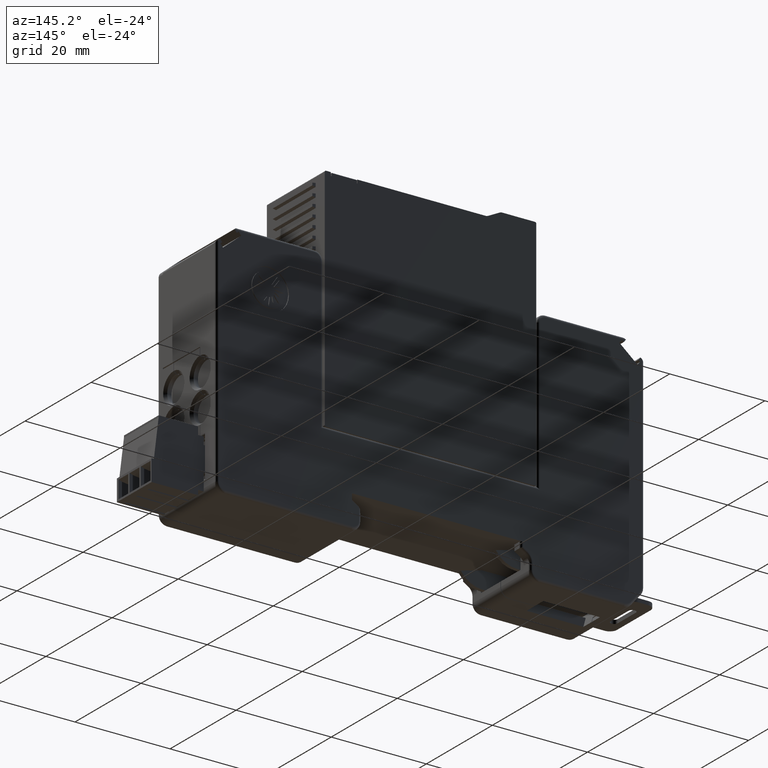
[diagram: clean part render]
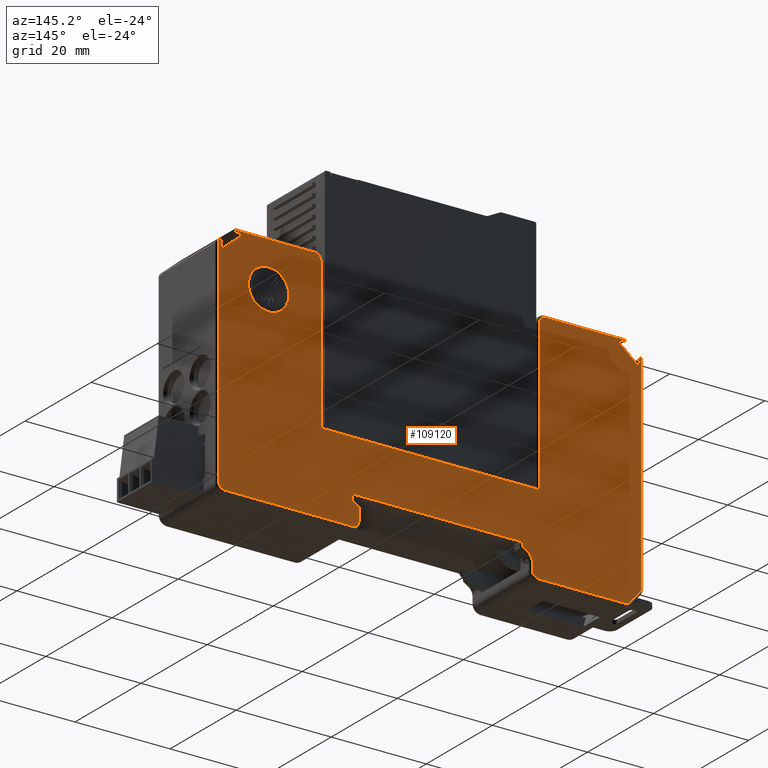
[diagram: same view with one face highlighted and labeled with its STEP entity id]
A machine part, auxiliary view. The second image highlights one B-rep face of the part: STEP entity #109120.
In plain terms, the highlighted planar face has unit normal (0, 1, 0).
Its self-contained STEP definition (entity closure, byte-faithful):
#8330=CARTESIAN_POINT('',(-211.662254520414,945.611242401068,
57.3942001002872));
#8340=VERTEX_POINT('',#8330);
#8510=CARTESIAN_POINT('',(-215.492131061991,945.611242401068,
54.1798501261889));
#8520=VERTEX_POINT('',#8510);
#8550=CARTESIAN_POINT('',(-212.745219310265,945.611242401068,
56.4852862472121));
#8560=DIRECTION('',(-0.765975307094292,8.32667268468867E-17,
-0.642869993794861));
#8570=VECTOR('',#8560,1.);
#8580=LINE('',#8550,#8570);
#8590=EDGE_CURVE('',#8340,#8520,#8580,.T.);
#31280=CARTESIAN_POINT('',(-212.208619309318,945.611242401068,
58.0452647496181));
#31290=VERTEX_POINT('',#31280);
#31410=CARTESIAN_POINT('',(-166.626557585868,945.611242401068,
3.7283145462322));
#31420=DIRECTION('',(0.642826743603436,-8.32667268468867E-17,
-0.766011604160278));
#31430=VECTOR('',#31420,1.);
#31440=LINE('',#31410,#31430);
#31450=EDGE_CURVE('',#31290,#8340,#31440,.T.);
#36120=CARTESIAN_POINT('',(-156.907462,945.611242401068,9.71286900000145
));
#36130=VERTEX_POINT('',#36120);
#36300=CARTESIAN_POINT('',(-155.607462,945.611242401068,8.41286900000146
));
#36310=VERTEX_POINT('',#36300);
#36340=CARTESIAN_POINT('',(-155.607462,945.611242401068,9.71286900000145
));
#36350=DIRECTION('',(0.,-1.,0.));
#36360=DIRECTION('',(1.,0.,0.));
#36370=AXIS2_PLACEMENT_3D('',#36340,#36350,#36360);
#36380=CIRCLE('',#36370,1.3);
#36390=EDGE_CURVE('',#36130,#36310,#36380,.T.);
#38900=CARTESIAN_POINT('',(-193.407462,945.611242401068,11.1142576932756
));
#38910=VERTEX_POINT('',#38900);
#39100=CARTESIAN_POINT('',(-192.326276307736,945.611242401068,
13.0647683144352));
#39110=VERTEX_POINT('',#39100);
#39140=CARTESIAN_POINT('',(-191.107462,945.611242401068,11.1142576932756
));
#39150=DIRECTION('',(0.,-1.,0.));
#39160=DIRECTION('',(1.,0.,0.));
#39170=AXIS2_PLACEMENT_3D('',#39140,#39150,#39160);
#39180=CIRCLE('',#39170,2.29999999999945);
#39190=EDGE_CURVE('',#39110,#38910,#39180,.T.);
#41000=CARTESIAN_POINT('',(-216.407462000001,945.611242401068,
55.5005332416126));
#41010=VERTEX_POINT('',#41000);
#41280=CARTESIAN_POINT('',(-216.407462,945.611242401068,12.3539654717783
));
#41290=VERTEX_POINT('',#41280);
#41320=CARTESIAN_POINT('',(-216.407462,945.611242401068,3.7283145462322)
);
#41330=DIRECTION('',(1.66837011230926E-14,-3.15544362088405E-30,-1.));
#41340=VECTOR('',#41330,1.);
#41350=LINE('',#41320,#41340);
#41360=EDGE_CURVE('',#41010,#41290,#41350,.T.);
#42080=CARTESIAN_POINT('',(-212.591625111398,945.611242401068,
57.7238513778171));
#42090=VERTEX_POINT('',#42080);
#42190=CARTESIAN_POINT('',(-212.745219310265,945.611242401068,
57.5949571702653));
#42200=DIRECTION('',(0.766011604161095,-8.32667268468867E-17,
0.642826743602463));
#42210=VECTOR('',#42200,1.);
#42220=LINE('',#42190,#42210);
#42230=EDGE_CURVE('',#42090,#31290,#42220,.T.);
#45270=CARTESIAN_POINT('',(-142.157462,945.611242401068,48.7128689999997
));
#45280=VERTEX_POINT('',#45270);
#45360=CARTESIAN_POINT('',(-133.657462,945.611242401068,48.7128689999997
));
#45370=VERTEX_POINT('',#45360);
#45400=CARTESIAN_POINT('',(-137.907462,945.611242401068,48.7128689999997
));
#45410=DIRECTION('',(1.22464679914735E-16,1.,1.49975978266186E-32));
#45420=DIRECTION('',(1.,-1.22464679914735E-16,0.));
#45430=AXIS2_PLACEMENT_3D('',#45400,#45410,#45420);
#45440=CIRCLE('',#45430,4.25);
#45450=EDGE_CURVE('',#45280,#45370,#45440,.T.);
#46440=CARTESIAN_POINT('',(-216.038677330121,945.611242401068,
54.8311310316039));
#46450=VERTEX_POINT('',#46440);
#46480=CARTESIAN_POINT('',(-173.153873846971,945.611242401068,
3.7283145462322));
#46490=DIRECTION('',(-0.642826743603096,8.32667268468867E-17,
0.766011604160563));
#46500=VECTOR('',#46490,1.);
#46510=LINE('',#46480,#46500);
#46520=EDGE_CURVE('',#8520,#46450,#46510,.T.);
#49160=CARTESIAN_POINT('',(-128.32279293801,945.611242401068,
54.1798501261889));
#49170=VERTEX_POINT('',#49160);
#49410=CARTESIAN_POINT('',(-132.152669479586,945.611242401068,
57.3942001002872));
#49420=VERTEX_POINT('',#49410);
#49450=CARTESIAN_POINT('',(-212.745219310265,945.611242401068,
125.034150800668));
#49460=DIRECTION('',(-0.765975307094252,8.32667268468867E-17,
0.642869993794909));
#49470=VECTOR('',#49460,1.);
#49480=LINE('',#49450,#49470);
#49490=EDGE_CURVE('',#49170,#49420,#49480,.T.);
#49960=CARTESIAN_POINT('',(-131.606304690683,945.611242401068,
58.0452647496181));
#49970=VERTEX_POINT('',#49960);
#50000=CARTESIAN_POINT('',(-177.188366414087,945.611242401068,
3.7283145462322));
#50010=DIRECTION('',(0.64282674360306,-8.32667268468867E-17,
0.766011604160593));
#50020=VECTOR('',#50010,1.);
#50030=LINE('',#50000,#50020);
#50040=EDGE_CURVE('',#49420,#49970,#50030,.T.);
#55190=CARTESIAN_POINT('',(-156.907462,945.611242401068,12.3592476530737
));
#55200=VERTEX_POINT('',#55190);
#55300=CARTESIAN_POINT('',(-156.907462,945.611242401068,3.7283145462322)
);
#55310=DIRECTION('',(0.,1.49975978266186E-32,-1.));
#55320=VECTOR('',#55310,1.);
#55330=LINE('',#55300,#55320);
#55340=EDGE_CURVE('',#55200,#36130,#55330,.T.);
#67040=CARTESIAN_POINT('',(-155.607462,945.611242401068,13.472614499999)
);
#67050=DIRECTION('',(0.,1.,0.));
#67060=DIRECTION('',(-1.,0.,0.));
#67070=AXIS2_PLACEMENT_3D('',#67040,#67050,#67060);
#67080=CIRCLE('',#67070,0.200000000000216);
#67090=CARTESIAN_POINT('',(-155.407462,945.611242401068,13.472614499999)
);
#67100=VERTEX_POINT('',#67090);
#67110=CARTESIAN_POINT('',(-155.501478147154,945.611242401068,
13.3030048807675));
#67120=VERTEX_POINT('',#67110);
#67130=EDGE_CURVE('',#67100,#67120,#67080,.T.);
#69780=CARTESIAN_POINT('',(-215.655671528041,945.611242401068,
55.152544403406));
#69790=VERTEX_POINT('',#69780);
#69820=CARTESIAN_POINT('',(-212.745219310265,945.611242401068,
57.5949571702704));
#69830=DIRECTION('',(0.766011604160128,-8.32667268468867E-17,
0.642826743603614));
#69840=VECTOR('',#69830,1.);
#69850=LINE('',#69820,#69840);
#69860=EDGE_CURVE('',#46450,#69790,#69850,.T.);
#82270=CARTESIAN_POINT('',(-216.137791585743,945.611242401068,
55.7270531065257));
#82280=VERTEX_POINT('',#82270);
#82310=CARTESIAN_POINT('',(-172.501142220867,945.611242401068,
3.7283145462322));
#82320=DIRECTION('',(-0.642826743603079,8.32667268468867E-17,
0.766011604160577));
#82330=VECTOR('',#82320,1.);
#82340=LINE('',#82310,#82330);
#82350=EDGE_CURVE('',#69790,#82280,#82340,.T.);
#86070=CARTESIAN_POINT('',(-155.607462,945.611242401068,14.6128689999989
));
#86080=VERTEX_POINT('',#86070);
#86240=CARTESIAN_POINT('',(-155.407462,945.611242401068,14.412868999999)
);
#86250=VERTEX_POINT('',#86240);
#86280=CARTESIAN_POINT('',(-155.607462,945.611242401068,14.412868999999)
);
#86290=DIRECTION('',(0.,1.,0.));
#86300=DIRECTION('',(-1.,0.,0.));
#86310=AXIS2_PLACEMENT_3D('',#86280,#86290,#86300);
#86320=CIRCLE('',#86310,0.199999999999818);
#86330=EDGE_CURVE('',#86080,#86250,#86320,.T.);
#86510=CARTESIAN_POINT('',(-155.407462,945.611242401068,3.7283145462322)
);
#86520=DIRECTION('',(0.,1.49975978266186E-32,-1.));
#86530=VECTOR('',#86520,1.);
#86540=LINE('',#86510,#86530);
#86550=EDGE_CURVE('',#86250,#67100,#86540,.T.);
#86770=CARTESIAN_POINT('',(-156.56131667562,945.611242401068,
12.6407442663566));
#86780=VERTEX_POINT('',#86770);
#86810=CARTESIAN_POINT('',(-212.745219310265,945.611242401068,
-22.466854560667));
#86820=DIRECTION('',(0.848048096156582,-8.32667268468867E-17,
0.529919264232955));
#86830=VECTOR('',#86820,1.);
#86840=LINE('',#86810,#86830);
#86850=EDGE_CURVE('',#86780,#67120,#86840,.T.);
#86920=CARTESIAN_POINT('',(-155.607462,945.611242401068,11.1142576932756
));
#86930=DIRECTION('',(0.,-1.,0.));
#86940=DIRECTION('',(1.,0.,0.));
#86950=AXIS2_PLACEMENT_3D('',#86920,#86930,#86940);
#86960=CIRCLE('',#86950,1.79999999999945);
#86970=EDGE_CURVE('',#86780,#55200,#86960,.T.);
#91780=CARTESIAN_POINT('',(-131.223298888603,945.611242401068,
57.7238513778171));
#91790=VERTEX_POINT('',#91780);
#92020=CARTESIAN_POINT('',(-130.81292180825,945.611242401068,
58.2128690000001));
#92030=VERTEX_POINT('',#92020);
#92060=CARTESIAN_POINT('',(-176.53563478788,945.611242401068,
3.7283145462322));
#92070=DIRECTION('',(0.642826743602219,-5.55111512312578E-17,
0.766011604161299));
#92080=VECTOR('',#92070,1.);
#92090=LINE('',#92060,#92080);
#92100=EDGE_CURVE('',#91790,#92030,#92090,.T.);
#93540=CARTESIAN_POINT('',(-147.607462,945.611242401068,58.2128689999992
));
#93550=VERTEX_POINT('',#93540);
#93580=CARTESIAN_POINT('',(-212.745219310265,945.611242401068,
58.2128690000001));
#93590=DIRECTION('',(-1.,1.22464679914735E-16,0.));
#93600=VECTOR('',#93590,1.);
#93610=LINE('',#93580,#93600);
#93620=EDGE_CURVE('',#92030,#93550,#93610,.T.);
#94940=CARTESIAN_POINT('',(-127.677132414258,945.611242401068,
55.7270531065257));
#94950=VERTEX_POINT('',#94940);
#95200=CARTESIAN_POINT('',(-128.159252471959,945.611242401068,
55.152544403406));
#95210=VERTEX_POINT('',#95200);
#95240=CARTESIAN_POINT('',(-171.313781779131,945.611242401068,
3.7283145462322));
#95250=DIRECTION('',(-0.642826743603059,8.32667268468867E-17,
-0.766011604160595));
#95260=VECTOR('',#95250,1.);
#95270=LINE('',#95240,#95260);
#95280=EDGE_CURVE('',#94950,#95210,#95270,.T.);
#100000=CARTESIAN_POINT('',(-212.859138850864,945.611242401068,
8.41286900000155));
#100010=VERTEX_POINT('',#100000);
#100040=CARTESIAN_POINT('',(-212.859138850864,945.611242401068,
9.91286900000157));
#100050=DIRECTION('',(0.,-1.,0.));
#100060=DIRECTION('',(1.,0.,0.));
#100070=AXIS2_PLACEMENT_3D('',#100040,#100050,#100060);
#100080=CIRCLE('',#100070,1.50000000000003);
#100090=CARTESIAN_POINT('',(-214.008205515542,945.611242401068,
8.94868758547158));
#100100=VERTEX_POINT('',#100090);
#100110=EDGE_CURVE('',#100100,#100010,#100080,.T.);
#100620=CARTESIAN_POINT('',(-216.056528664679,945.611242401068,
11.3897840572483));
#100630=VERTEX_POINT('',#100620);
#100660=CARTESIAN_POINT('',(-214.907462,945.611242401068,
12.3539654717783));
#100670=DIRECTION('',(0.,-1.,0.));
#100680=DIRECTION('',(1.,0.,0.));
#100690=AXIS2_PLACEMENT_3D('',#100660,#100670,#100680);
#100700=CIRCLE('',#100690,1.5);
#100710=EDGE_CURVE('',#41290,#100630,#100700,.T.);
#100880=CARTESIAN_POINT('',(-128.707462,945.611242401068,
8.41286900000127));
#100890=VERTEX_POINT('',#100880);
#100920=CARTESIAN_POINT('',(-212.745219310265,945.611242401068,
8.41286900000127));
#100930=DIRECTION('',(1.,-1.22464679914735E-16,0.));
#100940=VECTOR('',#100930,1.);
#100950=LINE('',#100920,#100940);
#100960=EDGE_CURVE('',#36310,#100890,#100950,.T.);
#101110=CARTESIAN_POINT('',(-127.407462,945.611242401068,
9.71286900000145));
#101120=VERTEX_POINT('',#101110);
#101220=CARTESIAN_POINT('',(-127.407462,945.611242401068,
55.5005332416136));
#101230=VERTEX_POINT('',#101220);
#101260=CARTESIAN_POINT('',(-127.407462,945.611242401068,3.7283145462322
));
#101270=DIRECTION('',(0.,-1.49975978266186E-32,1.));
#101280=VECTOR('',#101270,1.);
#101290=LINE('',#101260,#101280);
#101300=EDGE_CURVE('',#101120,#101230,#101290,.T.);
#104390=CARTESIAN_POINT('',(-213.002002191751,945.611242401068,
58.2128690000001));
#104400=VERTEX_POINT('',#104390);
#104520=CARTESIAN_POINT('',(-167.279289212118,945.611242401068,
3.7283145462322));
#104530=DIRECTION('',(0.64282674360224,-8.32667268468867E-17,
-0.766011604161282));
#104540=VECTOR('',#104530,1.);
#104550=LINE('',#104520,#104540);
#104560=EDGE_CURVE('',#104400,#42090,#104550,.T.);
#107370=CARTESIAN_POINT('',(-210.119521946148,945.611242401068,
16.9195612346681));
#107380=DIRECTION('',(1.22464679914735E-16,1.,1.49975978266186E-32));
#107390=DIRECTION('',(-1.,1.22464679914735E-16,0.));
#107400=AXIS2_PLACEMENT_3D('',#107370,#107380,#107390);
#107410=PLANE('',#107400);
#107420=EDGE_CURVE('',#45370,#45280,#45440,.T.);
#107430=ORIENTED_EDGE('',*,*,#107420,.F.);
#107440=ORIENTED_EDGE('',*,*,#45450,.F.);
#107450=EDGE_LOOP('',(#107440,#107430));
#107460=FACE_BOUND('',#107450,.T.);
#107470=CARTESIAN_POINT('',(-194.907462,945.611242401068,3.7283145462322
));
#107480=DIRECTION('',(0.,-1.49975978266186E-32,1.));
#107490=VECTOR('',#107480,1.);
#107500=LINE('',#107470,#107490);
#107510=CARTESIAN_POINT('',(-194.907462,945.611242401068,
25.3128696049982));
#107520=VERTEX_POINT('',#107510);
#107530=CARTESIAN_POINT('',(-194.907461999999,945.611242401068,
56.912868999999));
#107540=VERTEX_POINT('',#107530);
#107550=EDGE_CURVE('',#107520,#107540,#107500,.T.);
#107560=ORIENTED_EDGE('',*,*,#107550,.F.);
#107570=CARTESIAN_POINT('',(-196.207462,945.611242401068,56.912868999999
));
#107580=DIRECTION('',(0.,1.,0.));
#107590=DIRECTION('',(-1.,0.,0.));
#107600=AXIS2_PLACEMENT_3D('',#107570,#107580,#107590);
#107610=CIRCLE('',#107600,1.30000000000109);
#107620=CARTESIAN_POINT('',(-196.207462,945.611242401068,
58.2128690000001));
#107630=VERTEX_POINT('',#107620);
#107640=EDGE_CURVE('',#107630,#107540,#107610,.T.);
#107650=ORIENTED_EDGE('',*,*,#107640,.T.);
#107660=CARTESIAN_POINT('',(-212.745219310265,945.611242401068,
58.2128690000001));
#107670=DIRECTION('',(-1.,1.22464679914735E-16,0.));
#107680=VECTOR('',#107670,1.);
#107690=LINE('',#107660,#107680);
#107700=EDGE_CURVE('',#107630,#104400,#107690,.T.);
#107710=ORIENTED_EDGE('',*,*,#107700,.F.);
#107720=ORIENTED_EDGE('',*,*,#104560,.F.);
#107730=ORIENTED_EDGE('',*,*,#42230,.F.);
#107740=ORIENTED_EDGE('',*,*,#31450,.F.);
#107750=ORIENTED_EDGE('',*,*,#8590,.F.);
#107760=ORIENTED_EDGE('',*,*,#46520,.F.);
#107770=ORIENTED_EDGE('',*,*,#69860,.F.);
#107780=ORIENTED_EDGE('',*,*,#82350,.F.);
#107790=CARTESIAN_POINT('',(-212.745219310265,945.611242401068,
58.5767725155411));
#107800=DIRECTION('',(-0.765709455821382,8.32667268468867E-17,
-0.643186620869653));
#107810=VECTOR('',#107800,1.);
#107820=LINE('',#107790,#107810);
#107830=EDGE_CURVE('',#82280,#41010,#107820,.T.);
#107840=ORIENTED_EDGE('',*,*,#107830,.F.);
#107850=ORIENTED_EDGE('',*,*,#41360,.F.);
#107860=ORIENTED_EDGE('',*,*,#100710,.F.);
#107870=CARTESIAN_POINT('',(-209.627792423707,945.611242401068,
3.7283145462322));
#107880=DIRECTION('',(0.642787609686649,-8.32667268468867E-17,
-0.766044443118886));
#107890=VECTOR('',#107880,1.);
#107900=LINE('',#107870,#107890);
#107910=EDGE_CURVE('',#100630,#100100,#107900,.T.);
#107920=ORIENTED_EDGE('',*,*,#107910,.F.);
#107930=ORIENTED_EDGE('',*,*,#100110,.F.);
#107940=CARTESIAN_POINT('',(-212.745219310265,945.611242401068,
8.41286900000157));
#107950=DIRECTION('',(-1.,1.22464679914735E-16,0.));
#107960=VECTOR('',#107950,1.);
#107970=LINE('',#107940,#107960);
#107980=CARTESIAN_POINT('',(-194.707462757409,945.611242401068,
8.41286900000157));
#107990=VERTEX_POINT('',#107980);
#108000=EDGE_CURVE('',#107990,#100010,#107970,.T.);
#108010=ORIENTED_EDGE('',*,*,#108000,.T.);
#108020=CARTESIAN_POINT('',(-194.707462757409,945.611242401068,
9.71286900000157));
#108030=DIRECTION('',(0.,1.,0.));
#108040=DIRECTION('',(-1.,0.,0.));
#108050=AXIS2_PLACEMENT_3D('',#108020,#108030,#108040);
#108060=CIRCLE('',#108050,1.3);
#108070=CARTESIAN_POINT('',(-193.407462757409,945.611242401068,
9.71286900000157));
#108080=VERTEX_POINT('',#108070);
#108090=EDGE_CURVE('',#108080,#107990,#108060,.T.);
#108100=ORIENTED_EDGE('',*,*,#108090,.T.);
#108110=CARTESIAN_POINT('',(-193.407462757409,945.611242401068,
3.7283145462322));
#108120=DIRECTION('',(0.,-1.49975978266186E-32,1.));
#108130=VECTOR('',#108120,1.);
#108140=LINE('',#108110,#108130);
#108150=EDGE_CURVE('',#108080,#38910,#108140,.T.);
#108160=ORIENTED_EDGE('',*,*,#108150,.F.);
#108170=ORIENTED_EDGE('',*,*,#39190,.T.);
#108180=CARTESIAN_POINT('',(-212.745219310265,945.611242401068,
0.305596633780491));
#108190=DIRECTION('',(0.848048096156582,-8.32667268468867E-17,
0.529919264232955));
#108200=VECTOR('',#108190,1.);
#108210=LINE('',#108180,#108200);
#108220=CARTESIAN_POINT('',(-191.407462,945.611242401068,
13.6389072154352));
#108230=VERTEX_POINT('',#108220);
#108240=EDGE_CURVE('',#39110,#108230,#108210,.T.);
#108250=ORIENTED_EDGE('',*,*,#108240,.F.);
#108260=CARTESIAN_POINT('',(-191.407462,945.611242401068,3.7283145462322
));
#108270=DIRECTION('',(0.,-1.49975978266186E-32,1.));
#108280=VECTOR('',#108270,1.);
#108290=LINE('',#108260,#108280);
#108300=CARTESIAN_POINT('',(-191.407462,945.611242401068,
14.6128689999996));
#108310=VERTEX_POINT('',#108300);
#108320=EDGE_CURVE('',#108230,#108310,#108290,.T.);
#108330=ORIENTED_EDGE('',*,*,#108320,.F.);
#108340=CARTESIAN_POINT('',(-212.745219310265,945.611242401068,
14.6128689999996));
#108350=DIRECTION('',(-1.,1.22464679914735E-16,0.));
#108360=VECTOR('',#108350,1.);
#108370=LINE('',#108340,#108360);
#108380=EDGE_CURVE('',#86080,#108310,#108370,.T.);
#108390=ORIENTED_EDGE('',*,*,#108380,.T.);
#108400=ORIENTED_EDGE('',*,*,#86330,.F.);
#108410=ORIENTED_EDGE('',*,*,#86550,.F.);
#108420=ORIENTED_EDGE('',*,*,#67130,.F.);
#108430=ORIENTED_EDGE('',*,*,#86850,.T.);
#108440=ORIENTED_EDGE('',*,*,#86970,.F.);
#108450=ORIENTED_EDGE('',*,*,#55340,.F.);
#108460=ORIENTED_EDGE('',*,*,#36390,.F.);
#108470=ORIENTED_EDGE('',*,*,#100960,.F.);
#108480=CARTESIAN_POINT('',(-128.707462,945.611242401068,
9.71286900000145));
#108490=DIRECTION('',(0.,-1.,0.));
#108500=DIRECTION('',(1.,0.,0.));
#108510=AXIS2_PLACEMENT_3D('',#108480,#108490,#108500);
#108520=CIRCLE('',#108510,1.30000000000018);
#108530=EDGE_CURVE('',#100890,#101120,#108520,.T.);
#108540=ORIENTED_EDGE('',*,*,#108530,.F.);
#108550=ORIENTED_EDGE('',*,*,#101300,.F.);
#108560=CARTESIAN_POINT('',(-212.745219310265,945.611242401068,
127.183210449846));
#108570=DIRECTION('',(-0.765709455821661,8.32667268468867E-17,
0.643186620869322));
#108580=VECTOR('',#108570,1.);
#108590=LINE('',#108560,#108580);
#108600=EDGE_CURVE('',#101230,#94950,#108590,.T.);
#108610=ORIENTED_EDGE('',*,*,#108600,.F.);
#108620=ORIENTED_EDGE('',*,*,#95280,.F.);
#108630=CARTESIAN_POINT('',(-212.745219310265,945.611242401068,
126.135962046077));
#108640=DIRECTION('',(0.766011604160128,-8.32667268468867E-17,
-0.642826743603614));
#108650=VECTOR('',#108640,1.);
#108660=LINE('',#108630,#108650);
#108670=CARTESIAN_POINT('',(-127.776246669879,945.611242401068,
54.8311310316039));
#108680=VERTEX_POINT('',#108670);
#108690=EDGE_CURVE('',#95210,#108680,#108660,.T.);
#108700=ORIENTED_EDGE('',*,*,#108690,.F.);
#108710=CARTESIAN_POINT('',(-170.661050153029,945.611242401068,
3.7283145462322));
#108720=DIRECTION('',(-0.642826743603096,8.32667268468867E-17,
-0.766011604160563));
#108730=VECTOR('',#108720,1.);
#108740=LINE('',#108710,#108730);
#108750=EDGE_CURVE('',#108680,#49170,#108740,.T.);
#108760=ORIENTED_EDGE('',*,*,#108750,.F.);
#108770=ORIENTED_EDGE('',*,*,#49490,.F.);
#108780=ORIENTED_EDGE('',*,*,#50040,.F.);
#108790=CARTESIAN_POINT('',(-212.745219310265,945.611242401068,
126.135962045858));
#108800=DIRECTION('',(0.766011604161118,-8.32667268468867E-17,
-0.642826743602435));
#108810=VECTOR('',#108800,1.);
#108820=LINE('',#108790,#108810);
#108830=EDGE_CURVE('',#49970,#91790,#108820,.T.);
#108840=ORIENTED_EDGE('',*,*,#108830,.F.);
#108850=ORIENTED_EDGE('',*,*,#92100,.F.);
#108860=ORIENTED_EDGE('',*,*,#93620,.F.);
#108870=CARTESIAN_POINT('',(-147.607462,945.611242401068,56.912868999999
));
#108880=DIRECTION('',(0.,1.,0.));
#108890=DIRECTION('',(-1.,0.,0.));
#108900=AXIS2_PLACEMENT_3D('',#108870,#108880,#108890);
#108910=CIRCLE('',#108900,1.30000000000018);
#108920=CARTESIAN_POINT('',(-148.907462,945.611242401068,56.912868999999
));
#108930=VERTEX_POINT('',#108920);
#108940=EDGE_CURVE('',#108930,#93550,#108910,.T.);
#108950=ORIENTED_EDGE('',*,*,#108940,.T.);
#108960=CARTESIAN_POINT('',(-148.907462,945.611242401068,3.7283145462322
));
#108970=DIRECTION('',(0.,-1.49975978266186E-32,1.));
#108980=VECTOR('',#108970,1.);
#108990=LINE('',#108960,#108980);
#109000=CARTESIAN_POINT('',(-148.907462,945.611242401068,
25.3128696049982));
#109010=VERTEX_POINT('',#109000);
#109020=EDGE_CURVE('',#109010,#108930,#108990,.T.);
#109030=ORIENTED_EDGE('',*,*,#109020,.T.);
#109040=CARTESIAN_POINT('',(-212.745219310265,945.611242401068,
25.3128696049982));
#109050=DIRECTION('',(1.,-1.22464679914735E-16,0.));
#109060=VECTOR('',#109050,1.);
#109070=LINE('',#109040,#109060);
#109080=EDGE_CURVE('',#107520,#109010,#109070,.T.);
#109090=ORIENTED_EDGE('',*,*,#109080,.T.);
#109100=EDGE_LOOP('',(#109090,#109030,#108950,#108860,#108850,#108840,
#108780,#108770,#108760,#108700,#108620,#108610,#108550,#108540,#108470,
#108460,#108450,#108440,#108430,#108420,#108410,#108400,#108390,#108330,
#108250,#108170,#108160,#108100,#108010,#107930,#107920,#107860,#107850,
#107840,#107780,#107770,#107760,#107750,#107740,#107730,#107720,#107710,
#107650,#107560));
#109110=FACE_OUTER_BOUND('',#109100,.T.);
#109120=ADVANCED_FACE('',(#107460,#109110),#107410,.T.);